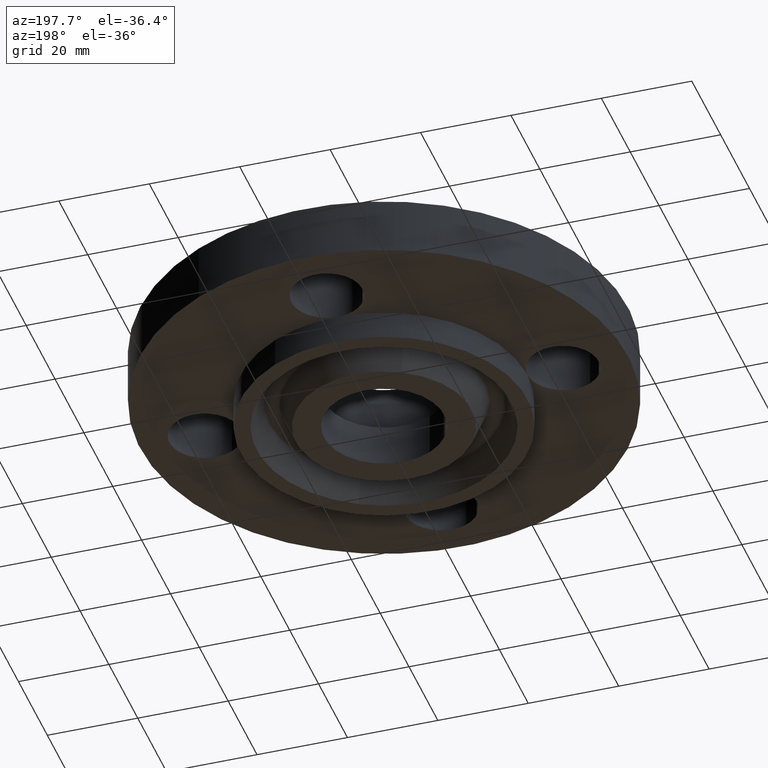
[diagram: clean part render]
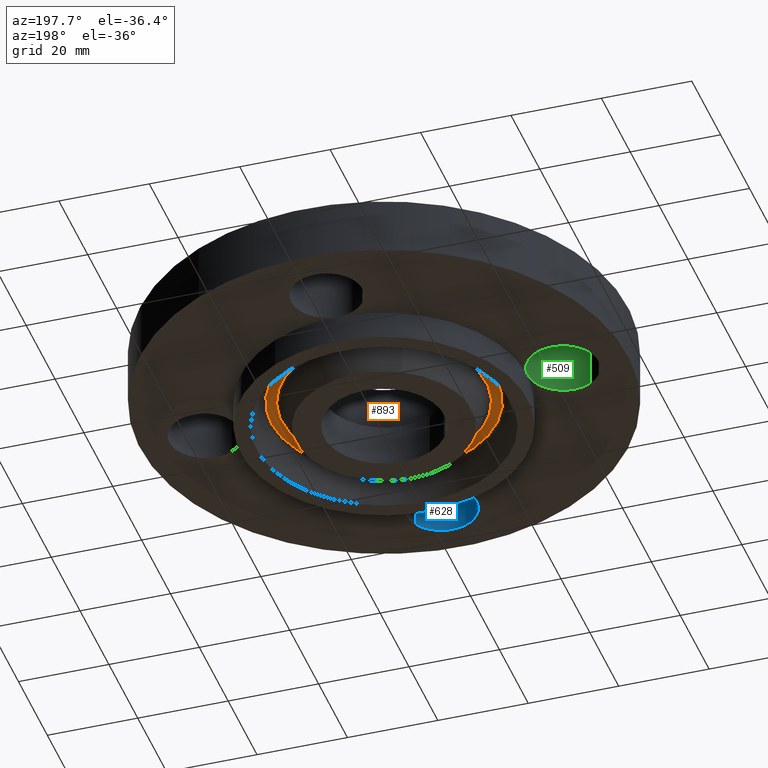
[diagram: same view with three faces highlighted in distinct colors, each labeled with its STEP entity id]
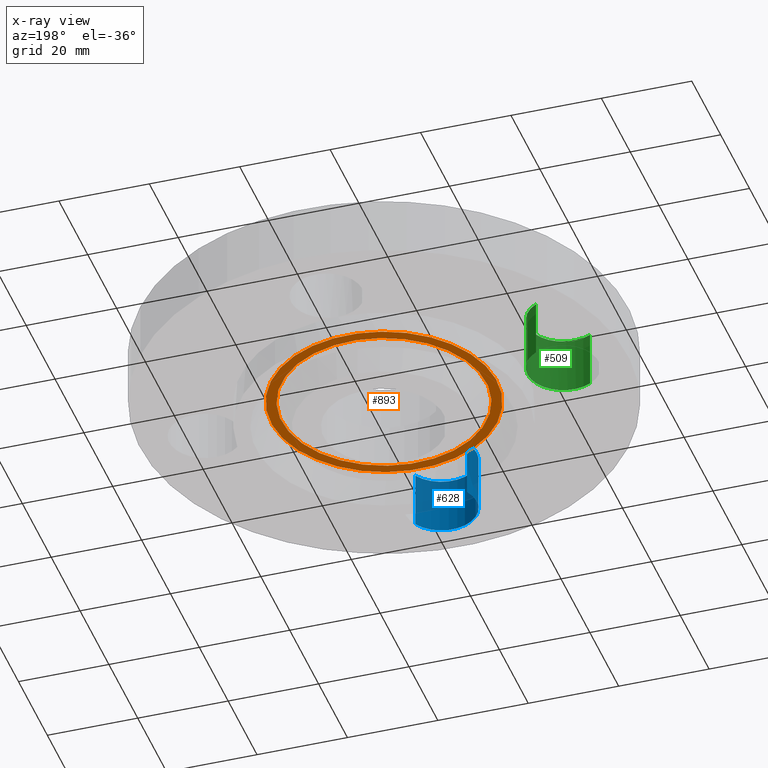
[diagram: x-ray of the same camera — body ghosted, the three highlighted faces saturated]
A machine part, auxiliary view with three faces highlighted in distinct colors.
The next image is the same camera in x-ray (body ghosted, the three faces saturated) — at least one of them is partly hidden behind the body in this view.
Their STEP definitions:

[orange] entity #893 — the highlighted planar face has unit normal (0, 0, -1).
#306=AXIS2_PLACEMENT_3D('Plane Axis2P3D',#303,#304,#305) ;
#799=AXIS2_PLACEMENT_3D('Circle Axis2P3D',#797,#798,$) ;
#818=AXIS2_PLACEMENT_3D('Circle Axis2P3D',#816,#817,$) ;
#877=AXIS2_PLACEMENT_3D('Circle Axis2P3D',#875,#876,$) ;
#886=AXIS2_PLACEMENT_3D('Circle Axis2P3D',#884,#885,$) ;
#303=CARTESIAN_POINT('Axis2P3D Location',(0.,1.25000000001,0.)) ;
#794=CARTESIAN_POINT('Vertex',(0.471070288742,-0.862288379607,-6.99353086378E-017)) ;
#797=CARTESIAN_POINT('Axis2P3D Location',(0.,0.,-6.99353086378E-017)) ;
#801=CARTESIAN_POINT('Vertex',(-0.471070288742,0.862288379607,-6.99353086378E-017)) ;
#816=CARTESIAN_POINT('Axis2P3D Location',(0.,0.,-6.99353086378E-017)) ;
#875=CARTESIAN_POINT('Axis2P3D Location',(0.,0.,0.)) ;
#879=CARTESIAN_POINT('Vertex',(0.427852596144,-0.783178923945,7.43062654277E-017)) ;
#881=CARTESIAN_POINT('Vertex',(-0.427852596144,0.783178923945,7.43062654277E-017)) ;
#884=CARTESIAN_POINT('Axis2P3D Location',(0.,0.,0.)) ;
#304=DIRECTION('Axis2P3D Direction',(0.,0.,-0.0393700787402)) ;
#305=DIRECTION('Axis2P3D XDirection',(0.0393700787402,0.,0.)) ;
#798=DIRECTION('Axis2P3D Direction',(0.,0.,0.0393700787402)) ;
#817=DIRECTION('Axis2P3D Direction',(0.,0.,0.0393700787402)) ;
#876=DIRECTION('Axis2P3D Direction',(0.,0.,-0.0393700787402)) ;
#885=DIRECTION('Axis2P3D Direction',(0.,0.,-0.0393700787402)) ;
#872=ORIENTED_EDGE('',*,*,#820,.F.) ;
#873=ORIENTED_EDGE('',*,*,#803,.F.) ;
#890=ORIENTED_EDGE('',*,*,#883,.T.) ;
#891=ORIENTED_EDGE('',*,*,#888,.T.) ;
#892=FACE_BOUND('',#889,.T.) ;
#893=ADVANCED_FACE('PartBody',(#874,#892),#307,.T.) ;
#800=CIRCLE('generated circle',#799,0.982572372164) ;
#819=CIRCLE('generated circle',#818,0.982572372164) ;
#878=CIRCLE('generated circle',#877,0.892427627843) ;
#887=CIRCLE('generated circle',#886,0.892427627843) ;
#803=EDGE_CURVE('',#795,#802,#800,.T.) ;
#820=EDGE_CURVE('',#802,#795,#819,.T.) ;
#883=EDGE_CURVE('',#880,#882,#878,.F.) ;
#888=EDGE_CURVE('',#882,#880,#887,.F.) ;
#871=EDGE_LOOP('',(#872,#873)) ;
#889=EDGE_LOOP('',(#890,#891)) ;
#874=FACE_OUTER_BOUND('',#871,.T.) ;
#307=PLANE('',#306) ;
#795=VERTEX_POINT('',#794) ;
#802=VERTEX_POINT('',#801) ;
#880=VERTEX_POINT('',#879) ;
#882=VERTEX_POINT('',#881) ;

[blue] entity #628 — the highlighted cylindrical surface (partial cylindrical patch) has radius 7.874 mm, axis along (-0, 0, -1).
#335=AXIS2_PLACEMENT_3D('Circle Axis2P3D',#333,#334,$) ;
#601=AXIS2_PLACEMENT_3D('Cylinder Axis2P3D',#598,#599,#600) ;
#619=AXIS2_PLACEMENT_3D('Circle Axis2P3D',#617,#618,$) ;
#330=CARTESIAN_POINT('Vertex',(-0.272050594187,-1.41137808304,0.)) ;
#333=CARTESIAN_POINT('Axis2P3D Location',(4.54579506146E-016,-1.56000000001,0.)) ;
#337=CARTESIAN_POINT('Vertex',(0.272050594187,-1.70862191697,0.)) ;
#598=CARTESIAN_POINT('Axis2P3D Location',(1.91044900668E-016,-1.56000000001,0.496062992128)) ;
#603=CARTESIAN_POINT('Line Origine',(0.272050594187,-1.70862191697,0.250000000001)) ;
#607=CARTESIAN_POINT('Vertex',(0.272050594187,-1.70862191697,0.500000000002)) ;
#610=CARTESIAN_POINT('Line Origine',(-0.272050594187,-1.41137808304,0.250000000001)) ;
#614=CARTESIAN_POINT('Vertex',(-0.272050594187,-1.41137808304,0.500000000002)) ;
#617=CARTESIAN_POINT('Axis2P3D Location',(1.91044900668E-016,-1.56000000001,0.500000000002)) ;
#334=DIRECTION('Axis2P3D Direction',(0.,0.,-0.0393700787402)) ;
#599=DIRECTION('Axis2P3D Direction',(-0.,0.,-0.0393700787402)) ;
#600=DIRECTION('Axis2P3D XDirection',(-0.0345504945626,0.0188750212049,0.)) ;
#604=DIRECTION('Vector Direction',(0.,0.,-0.0393700787402)) ;
#611=DIRECTION('Vector Direction',(0.,0.,-0.0393700787402)) ;
#618=DIRECTION('Axis2P3D Direction',(-0.,0.,-0.0393700787402)) ;
#605=VECTOR('Line Direction',#604,0.0393700787402) ;
#612=VECTOR('Line Direction',#611,0.0393700787402) ;
#623=ORIENTED_EDGE('',*,*,#609,.F.) ;
#624=ORIENTED_EDGE('',*,*,#339,.T.) ;
#625=ORIENTED_EDGE('',*,*,#616,.T.) ;
#626=ORIENTED_EDGE('',*,*,#621,.F.) ;
#628=ADVANCED_FACE('PartBody',(#627),#602,.F.) ;
#336=CIRCLE('generated circle',#335,0.310000000001) ;
#620=CIRCLE('generated circle',#619,0.310000000001) ;
#602=CYLINDRICAL_SURFACE('generated cylinder',#601,0.310000000001) ;
#339=EDGE_CURVE('',#338,#331,#336,.T.) ;
#609=EDGE_CURVE('',#338,#608,#606,.F.) ;
#616=EDGE_CURVE('',#331,#615,#613,.F.) ;
#621=EDGE_CURVE('',#608,#615,#620,.T.) ;
#622=EDGE_LOOP('',(#623,#624,#625,#626)) ;
#627=FACE_OUTER_BOUND('',#622,.T.) ;
#606=LINE('Line',#603,#605) ;
#613=LINE('Line',#610,#612) ;
#331=VERTEX_POINT('',#330) ;
#338=VERTEX_POINT('',#337) ;
#608=VERTEX_POINT('',#607) ;
#615=VERTEX_POINT('',#614) ;

[green] entity #509 — the highlighted cylindrical surface (partial cylindrical patch) has radius 7.874 mm, axis along (0, 0, -1).
#385=AXIS2_PLACEMENT_3D('Circle Axis2P3D',#383,#384,$) ;
#399=AXIS2_PLACEMENT_3D('Circle Axis2P3D',#397,#398,$) ;
#469=AXIS2_PLACEMENT_3D('Cylinder Axis2P3D',#466,#467,#468) ;
#499=AXIS2_PLACEMENT_3D('Circle Axis2P3D',#497,#498,$) ;
#244=CARTESIAN_POINT('Vertex',(-1.25000000001,0.,0.)) ;
#383=CARTESIAN_POINT('Axis2P3D Location',(-1.56000000001,-1.39870617276E-016,0.)) ;
#387=CARTESIAN_POINT('Vertex',(-1.41137808304,0.272050594187,0.)) ;
#394=CARTESIAN_POINT('Vertex',(-1.70862191697,-0.272050594187,0.)) ;
#397=CARTESIAN_POINT('Axis2P3D Location',(-1.56000000001,-1.39870617276E-016,0.)) ;
#466=CARTESIAN_POINT('Axis2P3D Location',(-1.56000000001,-2.86567351002E-016,0.496062992128)) ;
#471=CARTESIAN_POINT('Line Origine',(-1.70862191697,-0.272050594187,0.250000000001)) ;
#475=CARTESIAN_POINT('Vertex',(-1.70862191697,-0.272050594187,0.500000000002)) ;
#478=CARTESIAN_POINT('Line Origine',(-1.41137808304,0.272050594187,0.250000000001)) ;
#482=CARTESIAN_POINT('Vertex',(-1.41137808304,0.272050594187,0.500000000002)) ;
#497=CARTESIAN_POINT('Axis2P3D Location',(-1.56000000001,-2.86567351002E-016,0.500000000002)) ;
#384=DIRECTION('Axis2P3D Direction',(0.,0.,-0.0393700787402)) ;
#398=DIRECTION('Axis2P3D Direction',(0.,0.,-0.0393700787402)) ;
#467=DIRECTION('Axis2P3D Direction',(0.,0.,-0.0393700787402)) ;
#468=DIRECTION('Axis2P3D XDirection',(0.0188750212049,0.0345504945626,0.)) ;
#472=DIRECTION('Vector Direction',(0.,0.,-0.0393700787402)) ;
#479=DIRECTION('Vector Direction',(0.,0.,-0.0393700787402)) ;
#498=DIRECTION('Axis2P3D Direction',(0.,0.,-0.0393700787402)) ;
#473=VECTOR('Line Direction',#472,0.0393700787402) ;
#480=VECTOR('Line Direction',#479,0.0393700787402) ;
#503=ORIENTED_EDGE('',*,*,#484,.F.) ;
#504=ORIENTED_EDGE('',*,*,#389,.T.) ;
#505=ORIENTED_EDGE('',*,*,#401,.T.) ;
#506=ORIENTED_EDGE('',*,*,#477,.T.) ;
#507=ORIENTED_EDGE('',*,*,#501,.F.) ;
#509=ADVANCED_FACE('PartBody',(#508),#470,.F.) ;
#386=CIRCLE('generated circle',#385,0.310000000001) ;
#400=CIRCLE('generated circle',#399,0.310000000001) ;
#500=CIRCLE('generated circle',#499,0.310000000001) ;
#470=CYLINDRICAL_SURFACE('generated cylinder',#469,0.310000000001) ;
#389=EDGE_CURVE('',#388,#245,#386,.T.) ;
#401=EDGE_CURVE('',#245,#395,#400,.T.) ;
#477=EDGE_CURVE('',#395,#476,#474,.F.) ;
#484=EDGE_CURVE('',#388,#483,#481,.F.) ;
#501=EDGE_CURVE('',#483,#476,#500,.T.) ;
#502=EDGE_LOOP('',(#503,#504,#505,#506,#507)) ;
#508=FACE_OUTER_BOUND('',#502,.T.) ;
#474=LINE('Line',#471,#473) ;
#481=LINE('Line',#478,#480) ;
#245=VERTEX_POINT('',#244) ;
#388=VERTEX_POINT('',#387) ;
#395=VERTEX_POINT('',#394) ;
#476=VERTEX_POINT('',#475) ;
#483=VERTEX_POINT('',#482) ;